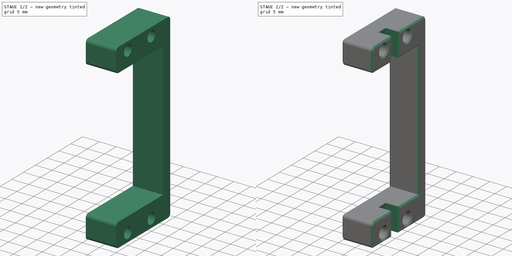
[diagram: build sequence overview — one tinted view per stage of 2, left to right]
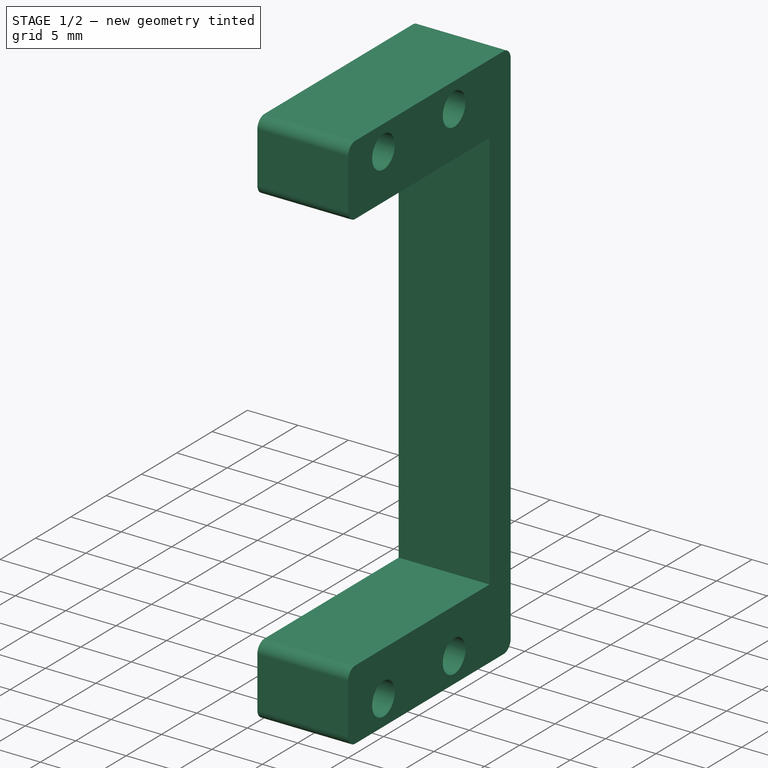
[diagram: stage 1 of 2 — iso view after this stage's code; geometry added in this stage tinted green]
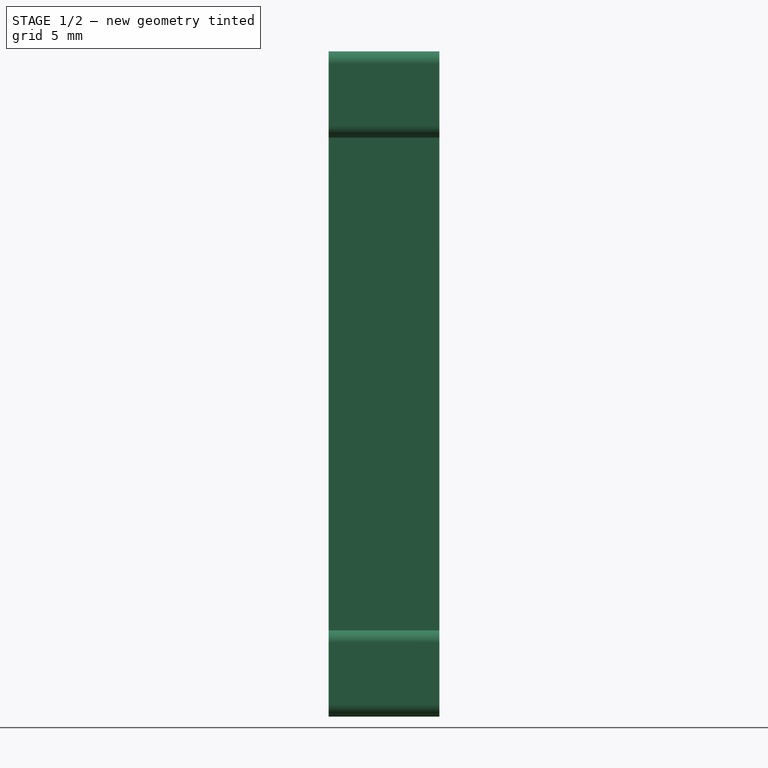
[diagram: stage 1 of 2 — front view after this stage's code; geometry added in this stage tinted green]
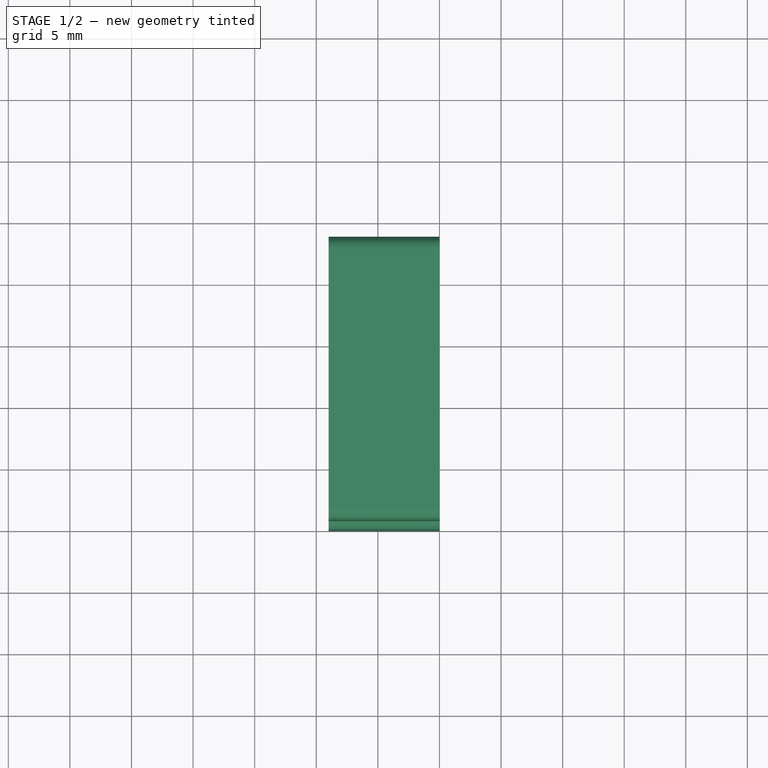
[diagram: stage 1 of 2 — top view after this stage's code; geometry added in this stage tinted green]
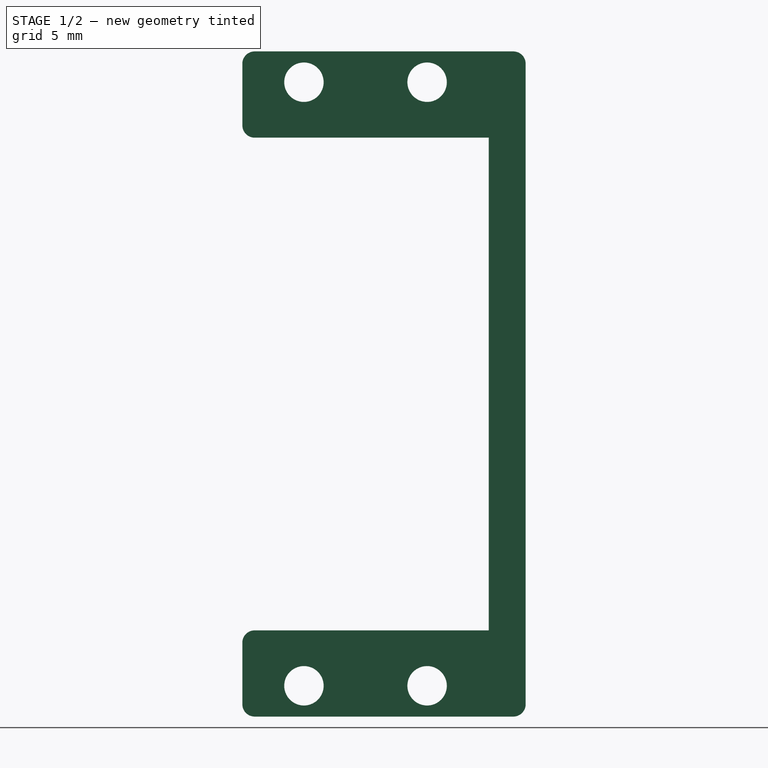
[diagram: stage 1 of 2 — right view after this stage's code; geometry added in this stage tinted green]
FCSTD DOCUMENT  (FreeCAD 1.2R20251223 (Git shallow))
Label: lifter
License: All rights reserved
objects: Sketcher::SketchObject×2, App::Point×1, PartDesign::Pad×1, PartDesign::Fillet×1, PartDesign::Pocket×1, PartDesign::Chamfer×1, PartDesign::Body×1
note: 17 computed .brp shape members not serialized (recipe doc carries the construction recipe); baked Part::Feature solids carry a one-line shape summary decoded from their .brp

FEATURE [App::Point] Origin072  label="Origine"
  Role = Origin
FEATURE [Sketcher::SketchObject] Sketch044
  ArcFitTolerance = 0
  AttachmentSupport = -> [Origin045]
  ExternalTypes = [0]
  FullyConstrained = true
  MakeInternals = false
  MapMode = 5
  Placement = pos=(0,0,0) rot=(0.57735,0.57735,0.57735;2.0944rad)
  sketch-geometry (22):
    g0: LineSegment [constr] StartX=10 StartY=-37 StartZ=0 EndX=10 EndY=17 EndZ=0
    g1: LineSegment [constr] StartX=10 StartY=17 StartZ=0 EndX=-10 EndY=17 EndZ=0
    g2: LineSegment [constr] StartX=-10 StartY=17 StartZ=0 EndX=-10 EndY=-37 EndZ=0
    g3: LineSegment [constr] StartX=-10 StartY=-37 StartZ=0 EndX=10 EndY=-37 EndZ=0
    g4: GeomPoint [constr] X=0 Y=-10 Z=0
    g5: LineSegment StartX=-10 StartY=17 StartZ=0 EndX=13 EndY=17 EndZ=0
    g6: LineSegment StartX=13 StartY=17 StartZ=0 EndX=13 EndY=-37 EndZ=0
    g7: LineSegment StartX=13 StartY=-37 StartZ=0 EndX=-10 EndY=-37 EndZ=0
    g8: LineSegment StartX=-10 StartY=-37 StartZ=0 EndX=-10 EndY=-30 EndZ=0
    g9: LineSegment StartX=-10 StartY=-30 StartZ=0 EndX=10 EndY=-30 EndZ=0
    g10: LineSegment StartX=10 StartY=-30 StartZ=0 EndX=10 EndY=10 EndZ=0
    g11: LineSegment StartX=10 StartY=10 StartZ=0 EndX=-10 EndY=10 EndZ=0
    g12: LineSegment StartX=-10 StartY=10 StartZ=0 EndX=-10 EndY=17 EndZ=0
    g13: Circle CenterX=-5 CenterY=14.5 CenterZ=0 NormalX=0 NormalY=0 NormalZ=1 AngleXU=0 Radius=1.6
    g14: Circle CenterX=5 CenterY=14.5 CenterZ=0 NormalX=0 NormalY=0 NormalZ=1 AngleXU=0 Radius=1.6
    g15: Circle CenterX=-5 CenterY=-34.5 CenterZ=0 NormalX=0 NormalY=0 NormalZ=1 AngleXU=0 Radius=1.6
    g16: Circle CenterX=5 CenterY=-34.5 CenterZ=0 NormalX=0 NormalY=0 NormalZ=1 AngleXU=0 Radius=1.6
    g17: LineSegment [constr] StartX=-5 StartY=-34.5 StartZ=0 EndX=5 EndY=-34.5 EndZ=0
    g18: LineSegment [constr] StartX=5 StartY=-34.5 StartZ=0 EndX=5 EndY=14.5 EndZ=0
    g19: LineSegment [constr] StartX=5 StartY=14.5 StartZ=0 EndX=-5 EndY=14.5 EndZ=0
    g20: LineSegment [constr] StartX=-5 StartY=14.5 StartZ=0 EndX=-5 EndY=-34.5 EndZ=0
    g21: GeomPoint [constr] X=0 Y=-10 Z=0
  constraints (55):
    c: Coincident(g0,g1)
    c: Coincident(g1,g2)
    c: Coincident(g2,g3)
    c: Coincident(g3,g0)
    c: Vertical(g0)
    c: Vertical(g2)
    c: Horizontal(g1)
    c: Horizontal(g3)
    c: Symmetric(g2,g0,g4)
    c: PointOnObject(g4,g-2)
    c: DistanceY(g-1,g1) = 17
    c: DistanceX(g1,g1) = 20
    c: Coincident(g1,g5)
    c: Horizontal(g5)
    c: Coincident(g5,g6)
    c: Vertical(g6)
    c: Coincident(g6,g7)
    c: Coincident(g7,g2)
    c: Horizontal(g7)
    c: Coincident(g7,g8)
    c: PointOnObject(g8,g2)
    c: Coincident(g8,g9)
    c: PointOnObject(g9,g0)
    c: Horizontal(g9)
    c: Coincident(g9,g10)
    c: PointOnObject(g10,g0)
    c: Coincident(g10,g11)
    c: PointOnObject(g11,g2)
    c: Horizontal(g11)
    c: Coincident(g11,g12)
    c: Coincident(g12,g5)
    c: DistanceY(g-1,g10) = 10
    c: Equal(g12,g8)
    c: Distance(g5,g0) = 3
    c: Equal(g16,g15)
    c: Equal(g15,g13)
    c: Equal(g13,g14)
    c: Diameter(g13) = 3.2
    c: Coincident(g17,g18)
    c: Coincident(g18,g19)
    c: Coincident(g19,g20)
    c: Coincident(g20,g17)
    c: Horizontal(g17)
    c: Horizontal(g19)
    c: Vertical(g18)
    c: Vertical(g20)
    c: Symmetric(g19,g17,g21)
    c: Coincident(g21,g4)
    c: Coincident(g18,g14)
    c: Coincident(g17,g16)
    c: Coincident(g15,g17)
    c: Coincident(g19,g13)
    c: DistanceX(g19,g19) = 10
    c: DistanceY(g-1,g14) = 14.5
    c: DistanceY(g2,g-1) = 37
FEATURE [PartDesign::Pad] Pad025
  Direction = (1,1e-16,-1e-16)
  Length = 9
  Length2 = 10
  Placement = pos=(0,0,0) rot=(0.57735,0.57735,0.57735;2.0944rad)
  Profile = -> Sketch044
  ReferenceAxis = -> Sketch044 [N_Axis]
  Refine = true
  Reversed = true
  SideType = 0
  Suppressed = false
  Type = 0
  Type2 = 0
FEATURE [PartDesign::Fillet] Fillet013
  Base = -> Pad025 [Edge1,Edge20,Edge11,Edge8,Edge5,Edge2]
  BaseFeature = -> Pad025
  Placement = pos=(0,0,0) rot=(0.57735,0.57735,0.57735;2.0944rad)
  Radius = 1
  Refine = true
  SupportTransform = false
  Suppressed = false
  UseAllEdges = false
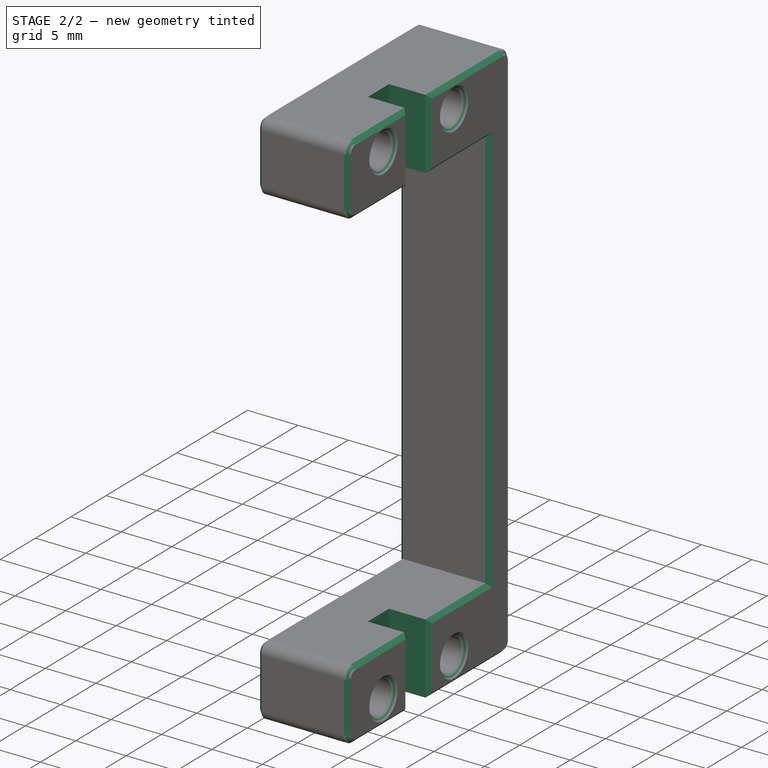
[diagram: stage 2 of 2 — iso view after this stage's code; geometry added in this stage tinted green]
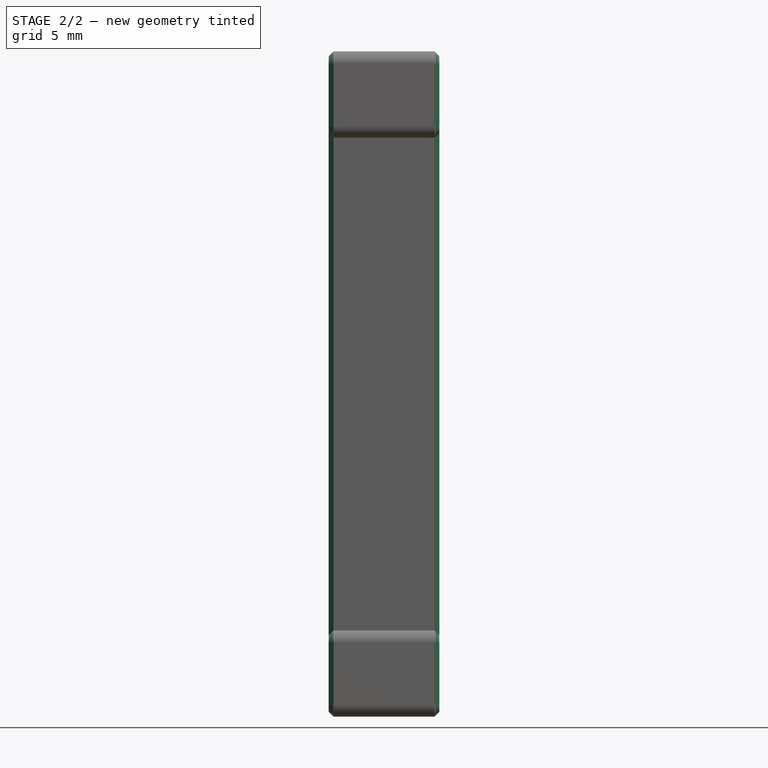
[diagram: stage 2 of 2 — front view after this stage's code; geometry added in this stage tinted green]
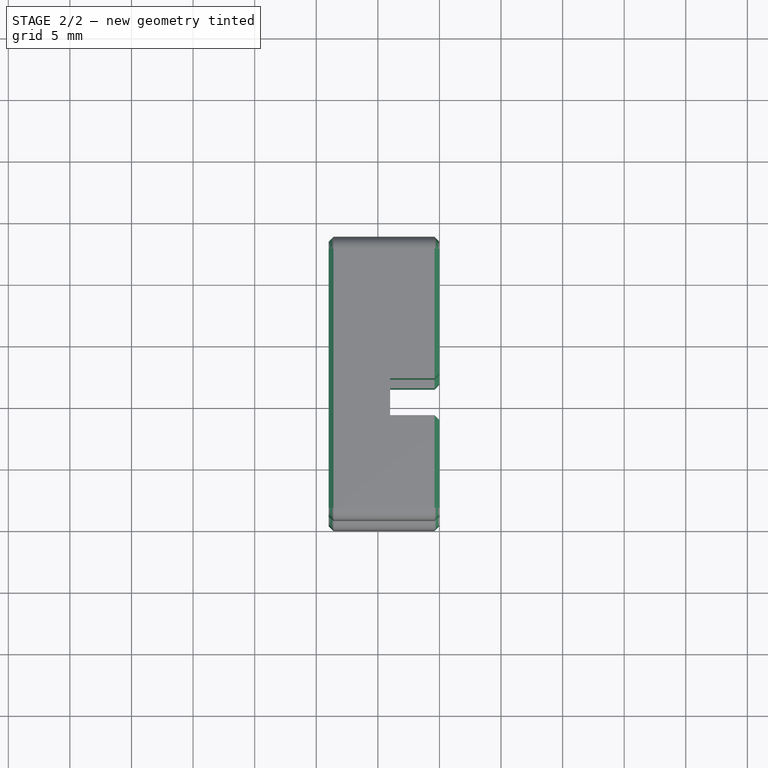
[diagram: stage 2 of 2 — top view after this stage's code; geometry added in this stage tinted green]
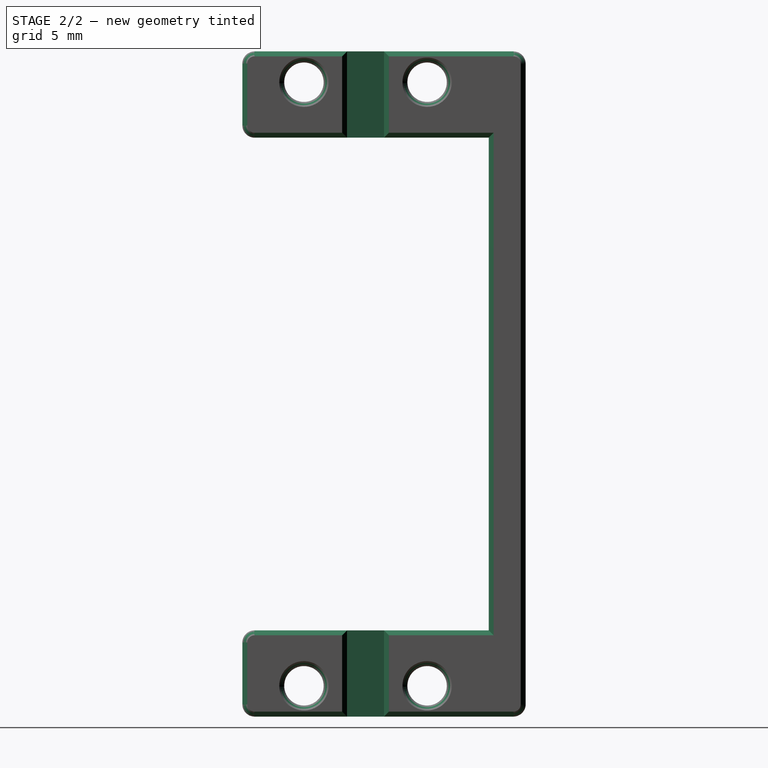
[diagram: stage 2 of 2 — right view after this stage's code; geometry added in this stage tinted green]
FEATURE [Sketcher::SketchObject] Sketch075
  ArcFitTolerance = 1e-06
  AttachmentSupport = -> [Origin045]
  ExternalTypes = [0]
  FullyConstrained = true
  MakeInternals = false
  MapMode = 5
  sketch-geometry (5):
    g0: LineSegment StartX=-4 StartY=1.5 StartZ=0 EndX=-4 EndY=-1.5 EndZ=0
    g1: LineSegment StartX=-4 StartY=-1.5 StartZ=0 EndX=4 EndY=-1.5 EndZ=0
    g2: LineSegment StartX=4 StartY=-1.5 StartZ=0 EndX=4 EndY=1.5 EndZ=0
    g3: LineSegment StartX=4 StartY=1.5 StartZ=0 EndX=-4 EndY=1.5 EndZ=0
    g4: GeomPoint [constr] X=0 Y=0 Z=0
  constraints (12):
    c: Coincident(g0,g1)
    c: Coincident(g1,g2)
    c: Coincident(g2,g3)
    c: Coincident(g3,g0)
    c: Vertical(g0)
    c: Vertical(g2)
    c: Horizontal(g1)
    c: Horizontal(g3)
    c: Symmetric(g2,g0,g4)
    c: Coincident(g4,g-1)
    c: Distance(g2,g2) = 3
    c: Distance(g4,g0) = 4
FEATURE [PartDesign::Pocket] Pocket
  BaseFeature = -> Fillet013
  Direction = (0,0,-1)
  Length = 5
  Length2 = 5
  Placement = pos=(0,0,0) rot=(0.57735,0.57735,0.57735;2.0944rad)
  Profile = -> Sketch075
  ReferenceAxis = -> Sketch075 [N_Axis]
  Refine = true
  SideType = 2
  Suppressed = false
  Type = 1
  Type2 = 0
FEATURE [PartDesign::Chamfer] Chamfer
  Angle = 45
  Base = -> Pocket [Face6,Face2,Face28,Face8]
  BaseFeature = -> Pocket
  ChamferType = 0
  FlipDirection = false
  Placement = pos=(0,0,0) rot=(0.57735,0.57735,0.57735;2.0944rad)
  Refine = true
  Size = 0.4
  Size2 = 1
  SupportTransform = false
  Suppressed = false
  UseAllEdges = false
FEATURE [PartDesign::Body] Body025  label="ServoLifterSpacer"
  AllowCompound = true
  Group = -> [Sketch044,Pad025,Fillet013,Sketch075,Pocket,Chamfer]
  Origin = -> Origin045
  Tip = -> Chamfer
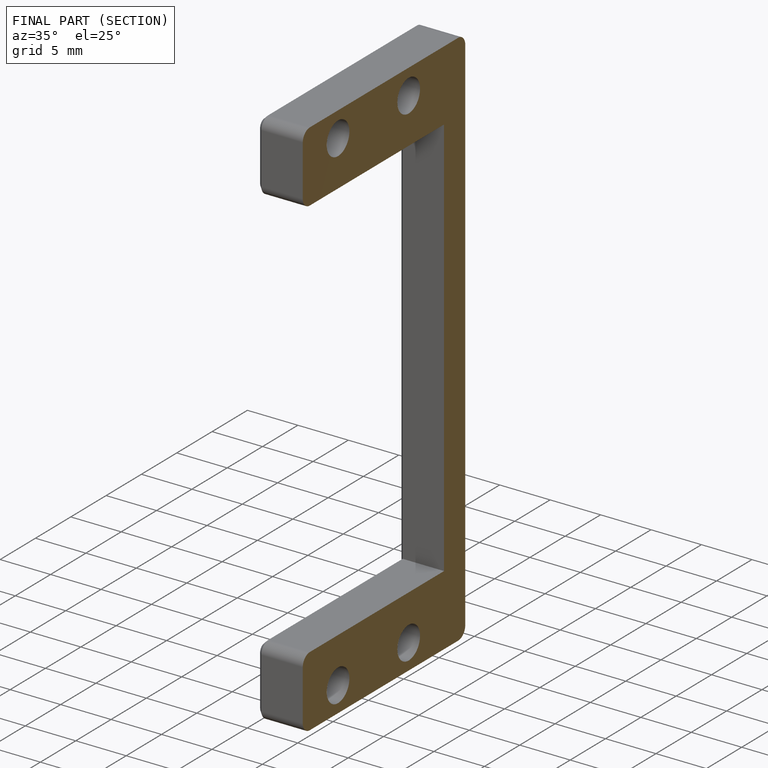
[diagram: finished part — half-section view (interior)]
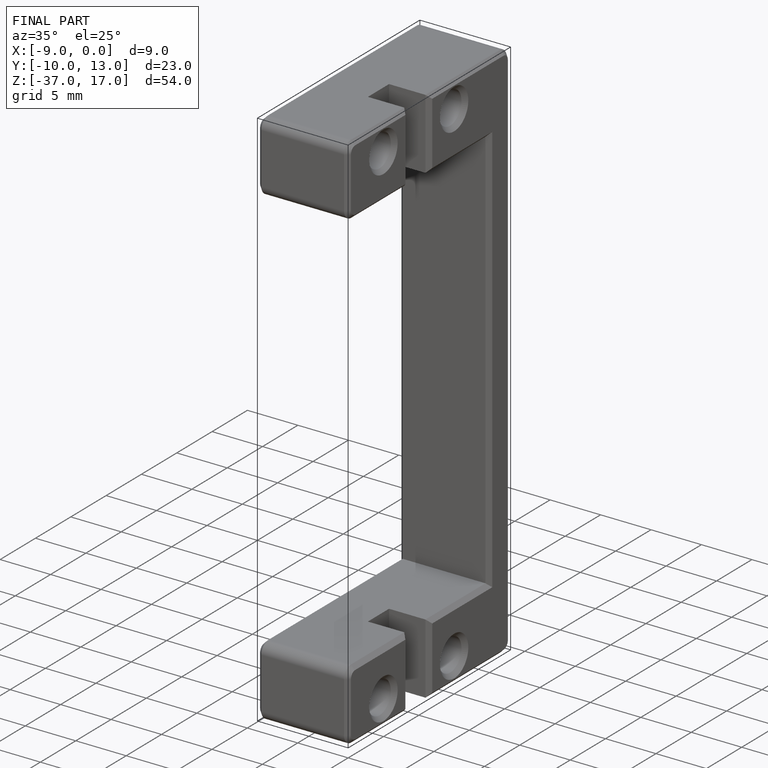
[diagram: finished part — iso view with bounding-box wireframe]
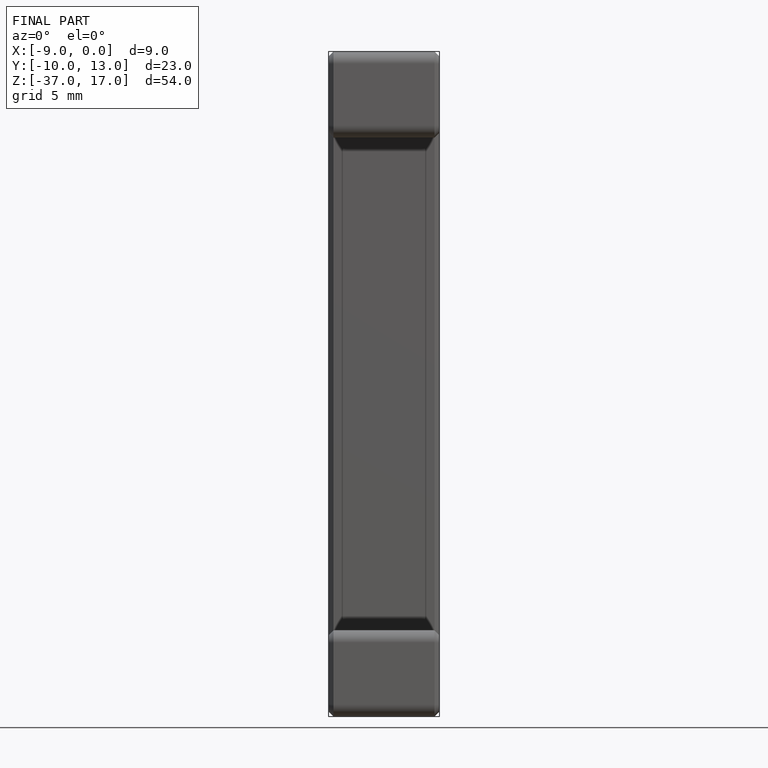
[diagram: finished part — front view with bounding-box wireframe]
